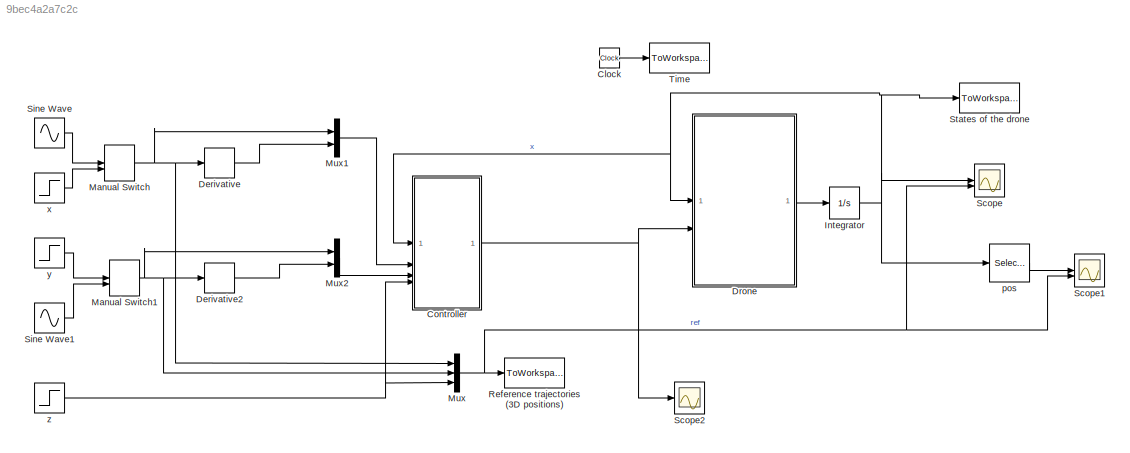
MODEL slx_9bec4a2a7c2c
KIND model
CONFIG AbsTol = auto
CONFIG EnableMultiTasking = on
CONFIG FixedStep = auto
CONFIG MaxStep = auto
CONFIG MinStep = auto
CONFIG RelTol = 1e-9
CONFIG SampleTimeConstraint = Unconstrained
CONFIG SolverName = ode45
CONFIG StartTime = 0.0
CONFIG StopFcn = x = X;\nr = ref;\nplot3(x(:,1), x(:,3), x(:,5), 'r-', LineWidth=1.5);\nhold on;\nplot3(r(:,1), r(:,2), r(:,3), 'k--', LineWidth=1.5);\nhold off;\ngrid on;
CONFIG StopTime = 80
BLOCK [Clock] Clock
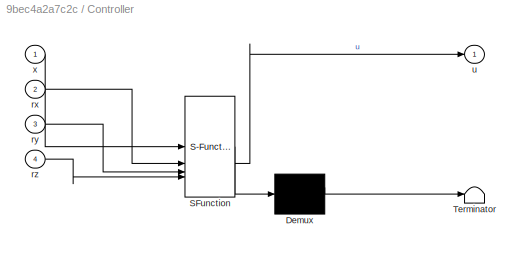
BLOCK [SubSystem] Controller
  ErrorFcn = Stateflow.Translate.translate
  PermitHierarchicalResolution = ExplicitOnly
  SFBlockType = MATLAB Function
  TreatAsAtomicUnit = on
BLOCK [Demux] Controller/ Demux 
  Outputs = 1
BLOCK [S-Function] Controller/ SFunction 
  EnableBusSupport = on
  FunctionName = sf_sfun
  Parameters = K1,K2
  PortCounts = [4 2]
  SFcnIsStateOwnerBlock = off
  SFunctionDeploymentMode = off
  Tag = Stateflow S-Function 1
BLOCK [Terminator] Controller/ Terminator 
BLOCK [Inport] Controller/rx
  Port = 2
BLOCK [Inport] Controller/ry
  Port = 3
BLOCK [Inport] Controller/rz
  Port = 4
BLOCK [Outport] Controller/u
  VectorParamsAs1DForOutWhenUnconnected = off
BLOCK [Inport] Controller/x
BLOCK [Derivative] Derivative
  CoefficientInTFapproximation = 1000
BLOCK [Derivative] Derivative2
  CoefficientInTFapproximation = 1000
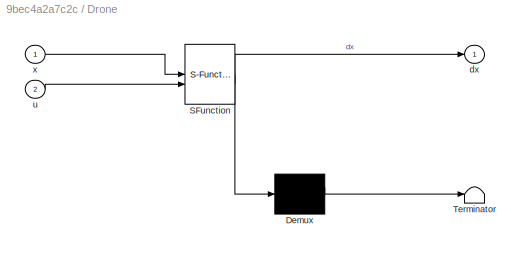
BLOCK [SubSystem] Drone
  ErrorFcn = Stateflow.Translate.translate
  PermitHierarchicalResolution = ExplicitOnly
  SFBlockType = MATLAB Function
  TreatAsAtomicUnit = on
BLOCK [Demux] Drone/ Demux 
  Outputs = 1
BLOCK [S-Function] Drone/ SFunction 
  EnableBusSupport = on
  FunctionName = sf_sfun
  PortCounts = [2 2]
  SFcnIsStateOwnerBlock = off
  SFunctionDeploymentMode = off
  Tag = Stateflow S-Function 2
BLOCK [Terminator] Drone/ Terminator 
BLOCK [Outport] Drone/dx
  VectorParamsAs1DForOutWhenUnconnected = off
BLOCK [Inport] Drone/u
  Port = 2
BLOCK [Inport] Drone/x
BLOCK [Integrator] Integrator
  InitialCondition = 0.1*[1 1 1 1 1 1 1 1 1 1 0 0]
  UpperSaturationLimit = [0 0 0 0 0 0 pi 0 pi 0 0 0]
BLOCK [ManualSwitch] Manual Switch
  CurrentSetting = 0
BLOCK [ManualSwitch] Manual Switch1
BLOCK [Mux] Mux
  DisplayOption = bar
  Inputs = 3
BLOCK [Mux] Mux1
  DisplayOption = bar
  Inputs = 2
BLOCK [Mux] Mux2
  DisplayOption = bar
  Inputs = 2
BLOCK [ToWorkspace] Reference trajectories (3D positions)
  MaxDataPoints = inf
  SampleTime = -1
  VariableName = ref
BLOCK [Scope] Scope
  Floating = off
  NumInputPorts = 2
  ScopeSpecificationString = Simulink.scopes.TimeScopeBlockCfg('CurrentConfiguration', extmgr.ConfigurationSet(extmgr.Configuration('Core','General UI',true,'FigureColor',[0.941176470588235 0.941176470588235 0.941176470588235],'DisplayFullSourceName',true),extmgr.Configuration('Core','Source UI',true),extmgr.Configuration('Sources','WiredSimulink',true,'DataLoggingSaveFormat','StructureWithTime','DataLoggingDecimation','1','D...<+3713ch>
BLOCK [Scope] Scope1
  Floating = off
  NumInputPorts = 2
  ScopeSpecificationString = Simulink.scopes.TimeScopeBlockCfg('CurrentConfiguration', extmgr.ConfigurationSet(extmgr.Configuration('Core','General UI',true,'FigureColor',[0.941176470588235 0.941176470588235 0.941176470588235]),extmgr.Configuration('Core','Source UI',true),extmgr.Configuration('Sources','WiredSimulink',true,'DataLoggingSaveFormat','StructureWithTime','DataLoggingDecimation','1','DataLoggingDecimateData',true,...<+3748ch>
BLOCK [Scope] Scope2
  Floating = off
  NumInputPorts = 1
  ScopeSpecificationString = Simulink.scopes.TimeScopeBlockCfg('CurrentConfiguration', extmgr.ConfigurationSet(extmgr.Configuration('Core','General UI',true),extmgr.Configuration('Core','Source UI',true),extmgr.Configuration('Sources','WiredSimulink',true,'DataLoggingVariableName','ScopeData1'),extmgr.Configuration('Visuals','Time Domain',true,'SerializedDisplays',{struct('MinYLimReal','-769.97159','MaxYLimReal','764.27899','...<+1840ch>
BLOCK [Sin] Sine Wave
  Frequency = 0.1
  SampleTime = 0
BLOCK [Sin] Sine Wave1
  Frequency = 0.1
  Phase = pi/2
  SampleTime = 0
BLOCK [ToWorkspace] States of the drone
  MaxDataPoints = inf
  SampleTime = -1
  VariableName = X
BLOCK [ToWorkspace] Time
  MaxDataPoints = inf
  SampleTime = -1
  VariableName = T
BLOCK [Selector] pos
  IndexOptions = Index vector (dialog)
  Indices = [1 2 3 4 5 6]
  InputPortWidth = 12
  OutputSizes = 1
BLOCK [Step] x
  After = 0
  SampleTime = 0
  Time = 10
BLOCK [Step] y
  After = 0
  SampleTime = 0
  Time = 20
BLOCK [Step] z
  After = 0
  SampleTime = 0
  Time = 0
LINE Clock:1 -> Time:1
NET Controller:1 -> Drone:2, Scope2:1
LINE Derivative2:1 -> Mux2:2
LINE Derivative:1 -> Mux1:2
LINE Drone:1 -> Integrator:1
NET Integrator:1 -> Controller:1, Drone:1, Scope:1, States of the drone:1, pos:1
NET Manual Switch1:1 -> Derivative2:1, Mux2:1, Mux:2
NET Manual Switch:1 -> Derivative:1, Mux1:1, Mux:1
LINE Mux1:1 -> Controller:2
LINE Mux2:1 -> Controller:3
NET Mux:1 -> Reference trajectories (3D positions):1, Scope1:2, Scope:2
LINE Sine Wave1:1 -> Manual Switch1:2
LINE Sine Wave:1 -> Manual Switch:1
LINE pos:1 -> Scope1:1
LINE x:1 -> Manual Switch:2
LINE y:1 -> Manual Switch1:1
NET z:1 -> Controller:4, Mux:3
note: NET lines group one-source signal fan-out (src -> all destinations, sorted); 1:1 wires keep LINE
CHART Controller states=1 transitions=1
  STATE_LABEL 'eML_blk_kernel()'
  STATE_LABEL 'SCRIPT:\nfunction u = fcn(x,rx,ry,rz, K1, K2)\n%#codegen\n\nu = zeros(6,1);\n\ng  = 9.81;\n\n% les moments inirtiels \nIxx=7.5*10^-3;\nIyy=7.5*10^-3;\nIzz=1.3*10^-3;\n\nk1 = 2; k2 = 3;\nk3 = 3; k4 = 5;\nk5 = 9; k6 = 6;\nk7 = 5; k8 = 3;\nk9 = 2; k10 = 2;\nk11 = 3; k12 = 2;\n\n% les coefficients \na1=((Iyy-Izz)/Ixx);\na2=((Izz-Ixx)/Iyy);\na3=((Ixx-Iyy)/Izz);\n\n% % lqr + pole placement method\n% % longitudinal\n% xlong = [x(1...<+750ch>'
CHART Drone states=1 transitions=1
  STATE_LABEL 'eML_blk_kernel()'
  STATE_LABEL 'SCRIPT:\nfunction dx = fcn(x,u)\n%#codegen\n\ng  = 9.81;\n\n% les moments inirtiels \nIxx=7.5*10^-3;\nIyy=7.5*10^-3;\nIzz=1.3*10^-3;\n\n\n% les coefficients \na1=((Iyy-Izz)/Ixx);\na2=((Izz-Ixx)/Iyy);\na3=((Ixx-Iyy)/Izz);\n\ndx = zeros(12,1);\n\ndx(1) = x(2);\ndx(2) = x(12)*x(4)-x(10)*x(6)-g*sin(x(9))+u(1);\ndx(3) = x(4);\ndx(4) = x(8)*x(6)-x(12)*x(2)+g*sin(x(7))*cos(x(9))+u(2);\ndx(5) = x(6);\ndx(6) = x(10)*x(2)-x(8)*x(4...<+168ch>'
CHART  states=0 transitions=0
CHART  states=0 transitions=0
